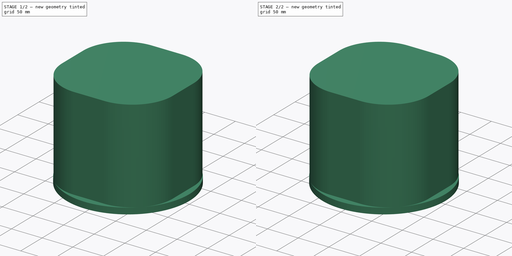
[diagram: build sequence overview — one tinted view per stage of 2, left to right]
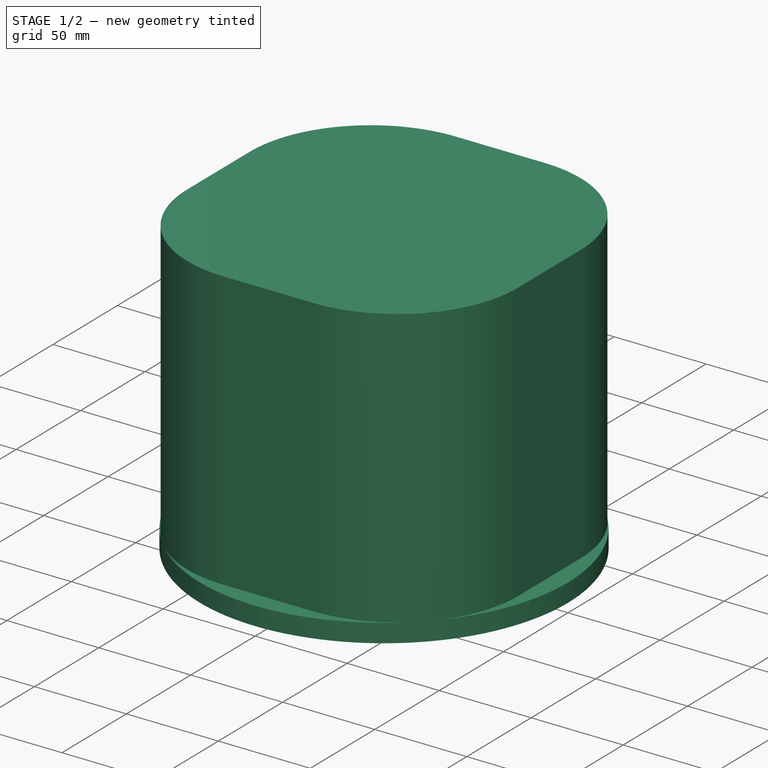
[diagram: stage 1 of 2 — iso view after this stage's code; geometry added in this stage tinted green]
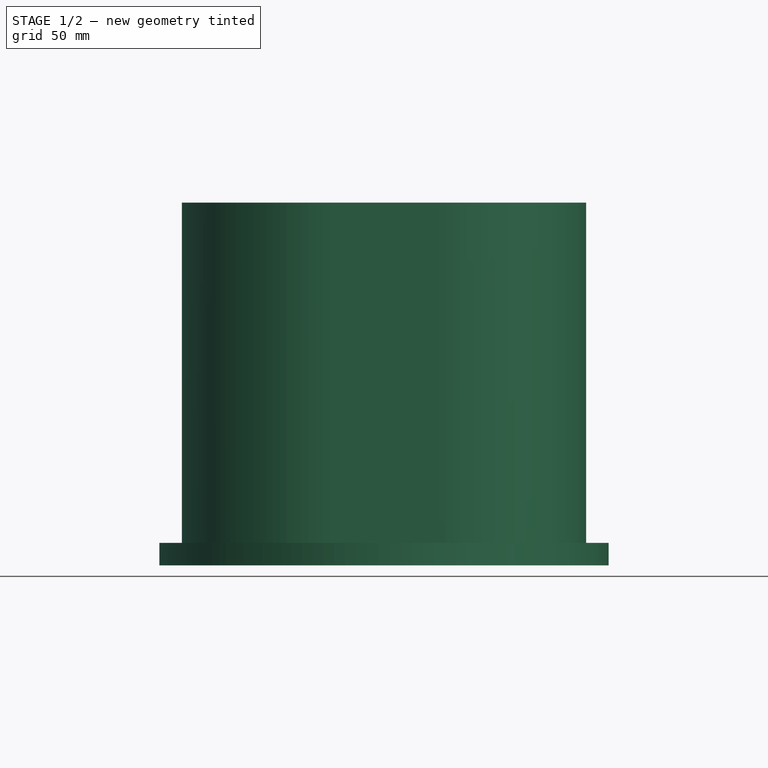
[diagram: stage 1 of 2 — front view after this stage's code; geometry added in this stage tinted green]
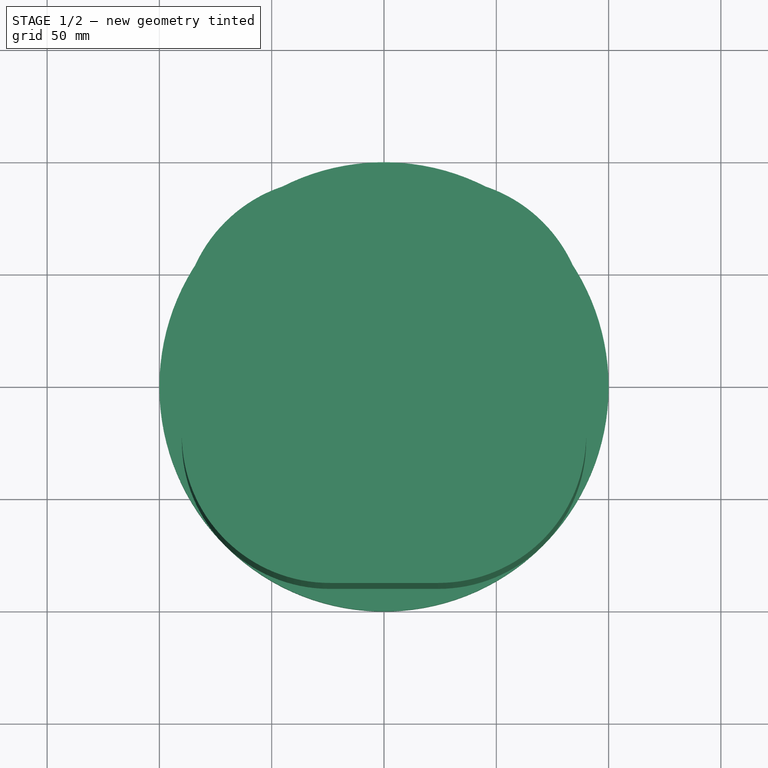
[diagram: stage 1 of 2 — top view after this stage's code; geometry added in this stage tinted green]
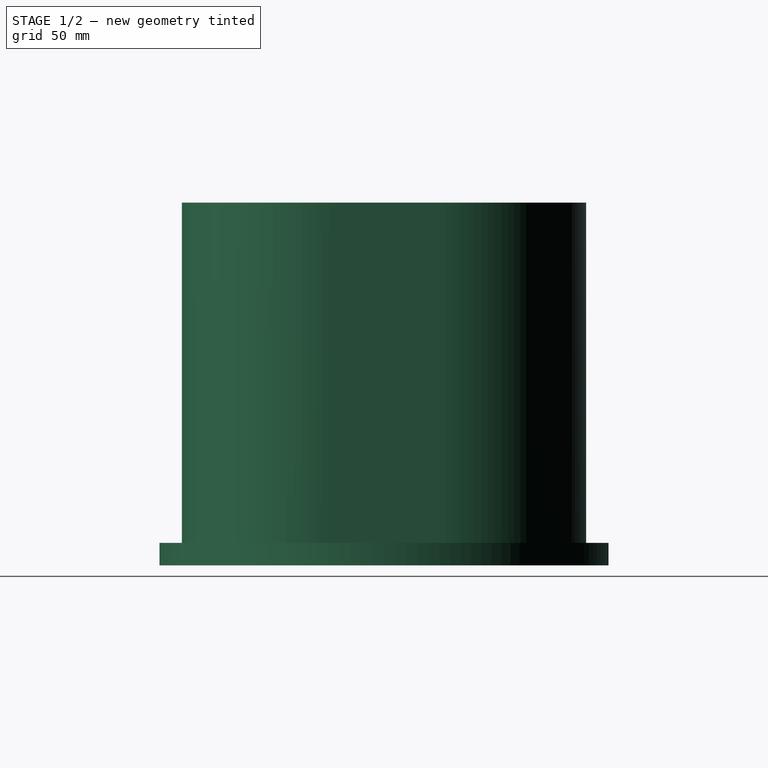
[diagram: stage 1 of 2 — right view after this stage's code; geometry added in this stage tinted green]
FCSTD DOCUMENT  (FreeCAD 0.20R29177 (Git))
Label: iXblue-Phins-Compact-C7-INS
License: All rights reserved
LicenseURL: http://en.wikipedia.org/wiki/All_rights_reserved
objects: Sketcher::SketchObject×1, PartDesign::Body×1, Part::Extrusion×1, Part::Cylinder×1, Part::MultiFuse×1, Part::Compound×1
note: 6 computed .brp shape members not serialized (recipe doc carries the construction recipe); baked Part::Feature solids carry a one-line shape summary decoded from their .brp

FEATURE [Sketcher::SketchObject] Sketch
  FullyConstrained = true
  MapMode = 5
  Support = -> [XY_Plane]
  sketch-geometry (9):
    g0: ArcOfCircle CenterX=-24.1421 CenterY=24.1421 CenterZ=0 NormalX=0 NormalY=0 NormalZ=1 AngleXU=0 Radius=65.8579 StartAngle=1.5708 EndAngle=3.14159
    g1: LineSegment StartX=-24.1421 StartY=90 StartZ=0 EndX=24.1421 EndY=90 EndZ=0
    g2: ArcOfCircle CenterX=24.1421 CenterY=24.1421 CenterZ=0 NormalX=0 NormalY=0 NormalZ=1 AngleXU=0 Radius=65.8579 StartAngle=1e-16 EndAngle=1.5708
    g3: LineSegment StartX=90 StartY=24.1421 StartZ=0 EndX=90 EndY=-24.1421 EndZ=0
    g4: ArcOfCircle CenterX=24.1421 CenterY=-24.1421 CenterZ=0 NormalX=0 NormalY=0 NormalZ=1 AngleXU=0 Radius=65.8579 StartAngle=4.71239 EndAngle=6.28319
    g5: LineSegment StartX=24.1421 StartY=-90 StartZ=0 EndX=-24.1421 EndY=-90 EndZ=0
    g6: ArcOfCircle CenterX=-24.1421 CenterY=-24.1421 CenterZ=0 NormalX=0 NormalY=0 NormalZ=1 AngleXU=0 Radius=65.8579 StartAngle=3.14159 EndAngle=4.71239
    g7: LineSegment StartX=-90 StartY=-24.1421 StartZ=0 EndX=-90 EndY=24.1421 EndZ=0
    g8: Circle CenterX=0 CenterY=0 CenterZ=0 NormalX=0 NormalY=0 NormalZ=1 AngleXU=0 Radius=100
  constraints (22):
    c: Tangent(g0,g1) = 1.5708
    c: Tangent(g1,g2) = 1.5708
    c: Tangent(g2,g3) = 1.5708
    c: Tangent(g3,g4) = 1.5708
    c: Tangent(g4,g5) = 1.5708
    c: Tangent(g5,g6) = 1.5708
    c: Tangent(g6,g7) = 1.5708
    c: Tangent(g7,g0) = 1.5708
    c: Horizontal(g1)
    c: Horizontal(g5)
    c: Vertical(g3)
    c: Vertical(g7)
    c: Equal(g0,g2)
    c: Equal(g2,g4)
    c: Equal(g4,g6)
    c: Distance(g-1,g1) = 90
    c: Distance(g-1,g5) = 90
    c: Distance(g-1,g3) = 90
    c: Distance(g-1,g7) = 90
    c: Coincident(g8,g-1)
    c: Tangent(g8,g0)
    c: Radius(g8) = 100
FEATURE [PartDesign::Body] Body
  Group = -> [Sketch]
  Origin = -> Origin
FEATURE [Part::Extrusion] Extrude  label="Housing"
  Base = -> Sketch
  Dir = (0,0,1)
  DirMode = 2
  FaceMakerClass = Part::FaceMakerBullseye
  LengthFwd = 161.5
  LengthRev = 0
  Solid = true
  Symmetric = false
FEATURE [Part::Cylinder] Cylinder  label="Base"
  Angle = 360
  AttacherType = Attacher::AttachEngine3D
  FirstAngle = 0
  Height = 10
  Radius = 100
  SecondAngle = 0
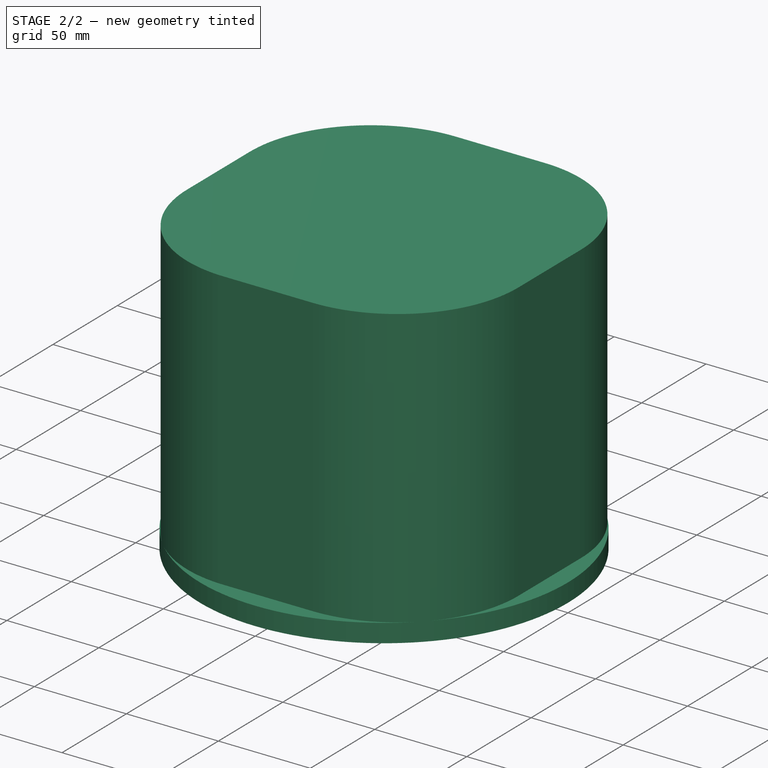
[diagram: stage 2 of 2 — iso view after this stage's code; geometry added in this stage tinted green]
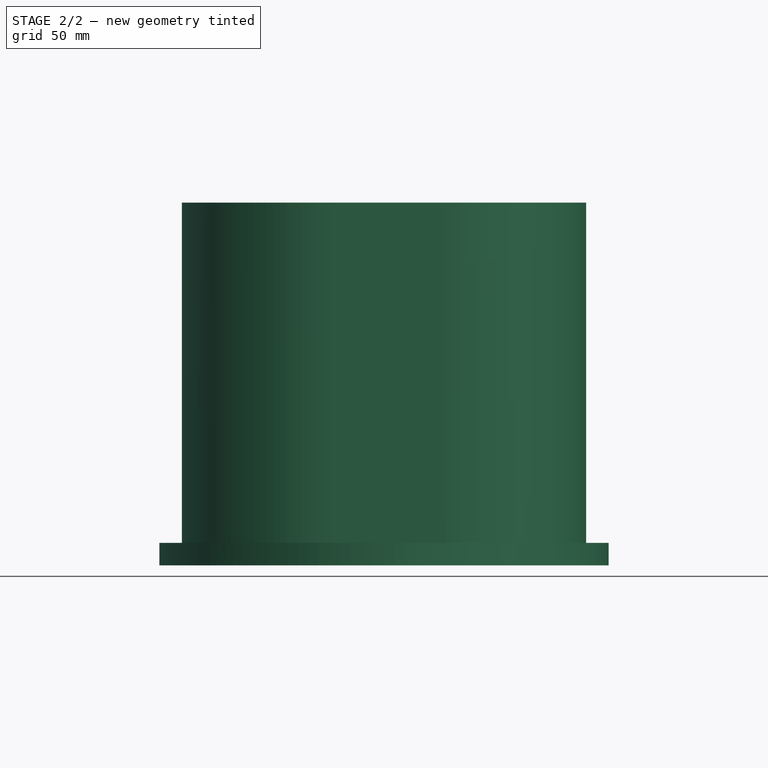
[diagram: stage 2 of 2 — front view after this stage's code; geometry added in this stage tinted green]
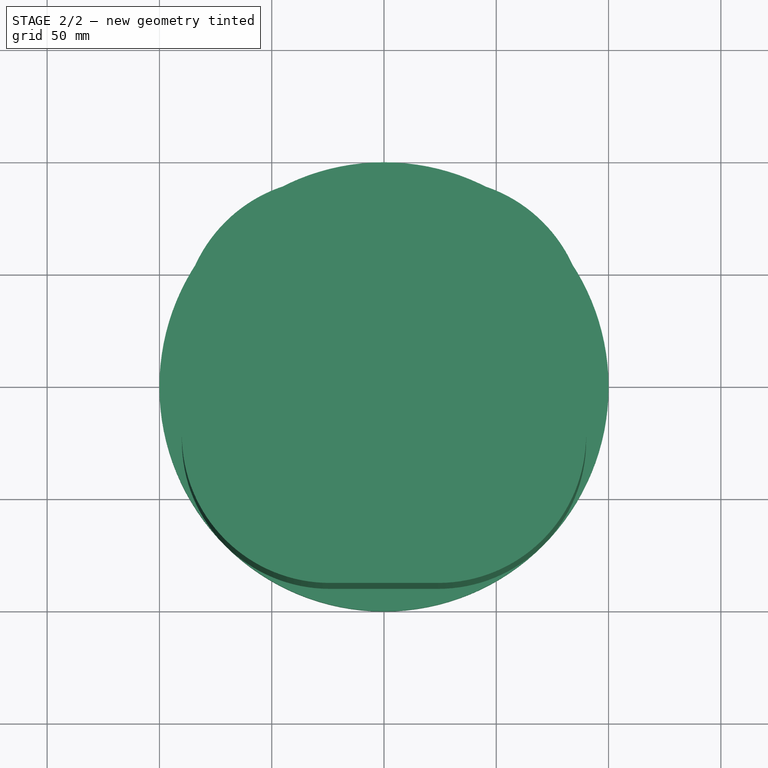
[diagram: stage 2 of 2 — top view after this stage's code; geometry added in this stage tinted green]
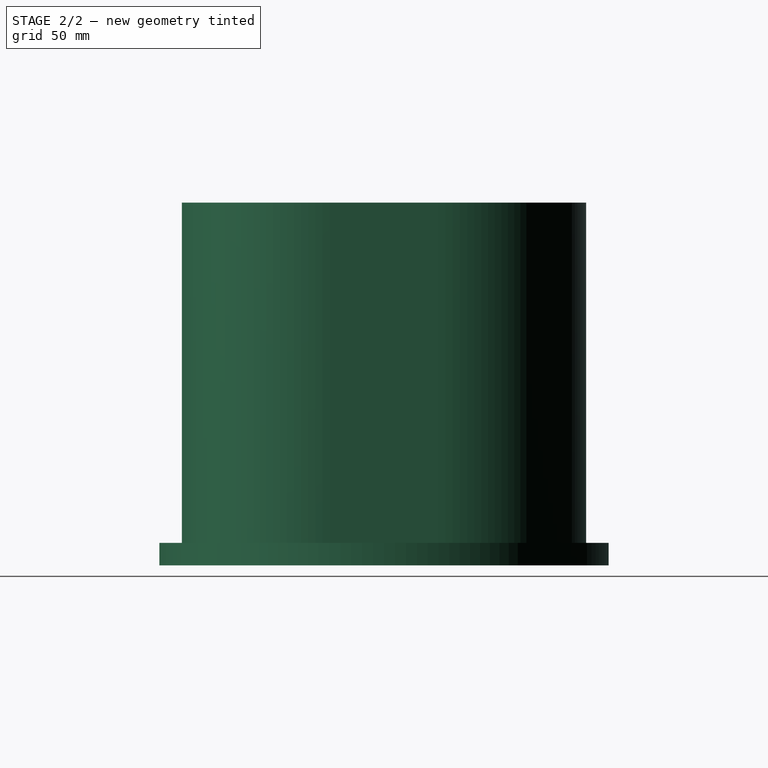
[diagram: stage 2 of 2 — right view after this stage's code; geometry added in this stage tinted green]
FEATURE [Part::MultiFuse] Fusion  label="Sensor"
  Shapes = -> [Extrude,Cylinder]
FEATURE [Part::Compound] Compound  label="Model"
  Links = -> [Fusion,Body]
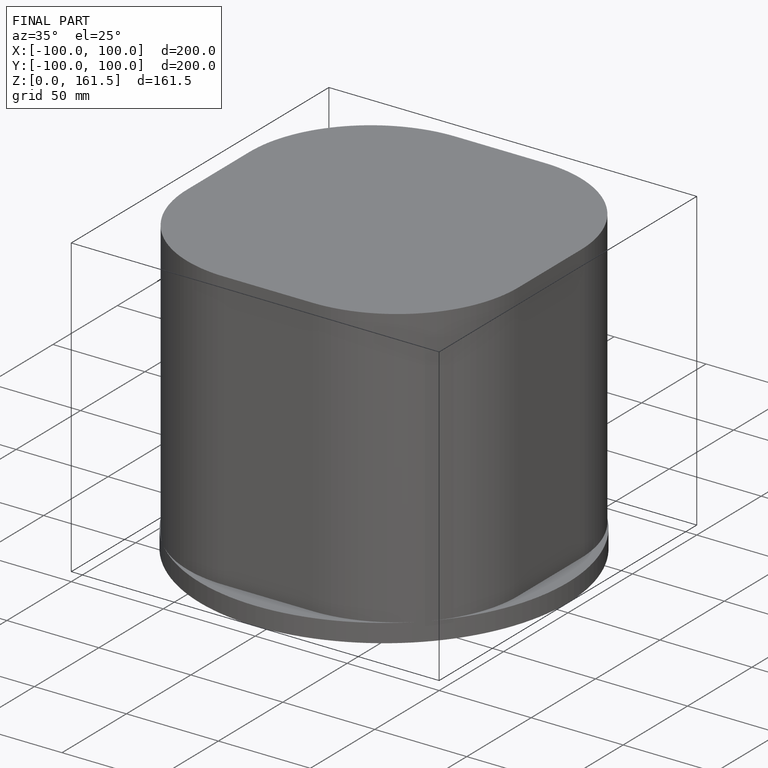
[diagram: finished part — iso view with bounding-box wireframe]
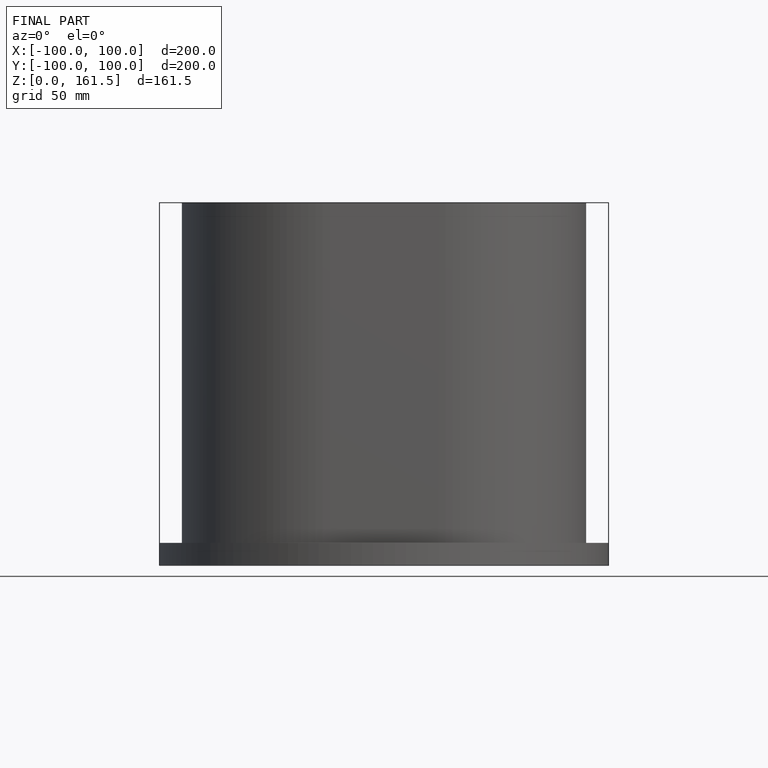
[diagram: finished part — front view with bounding-box wireframe]
